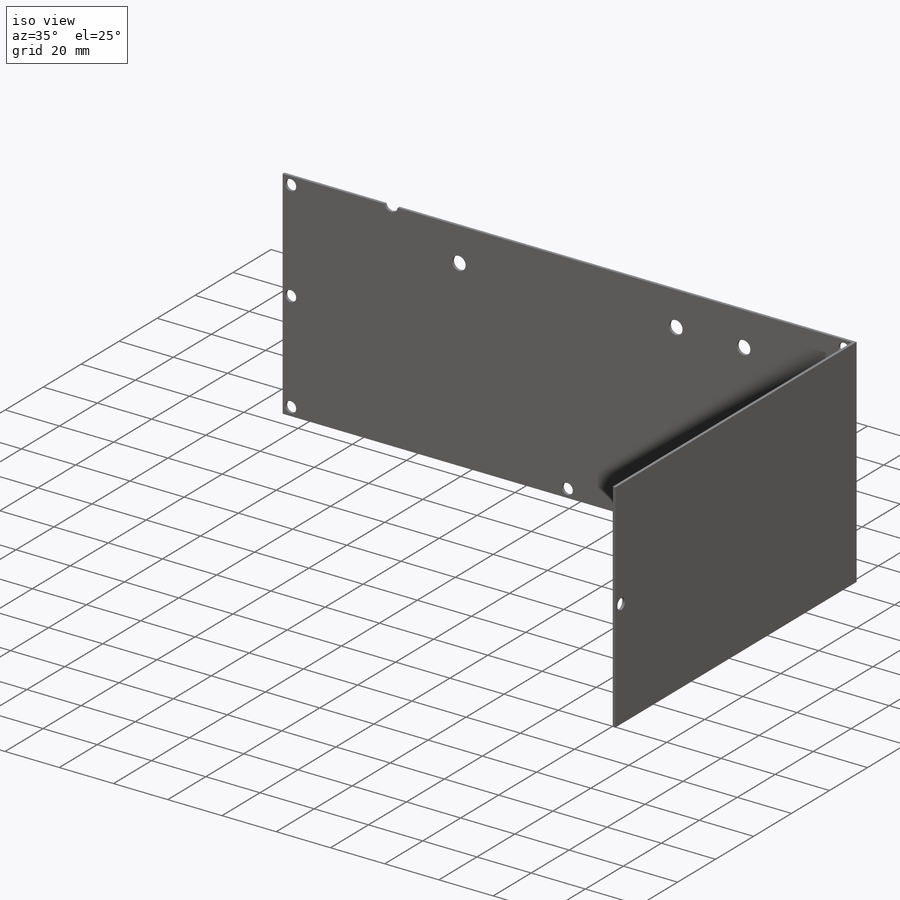
[diagram: iso view]
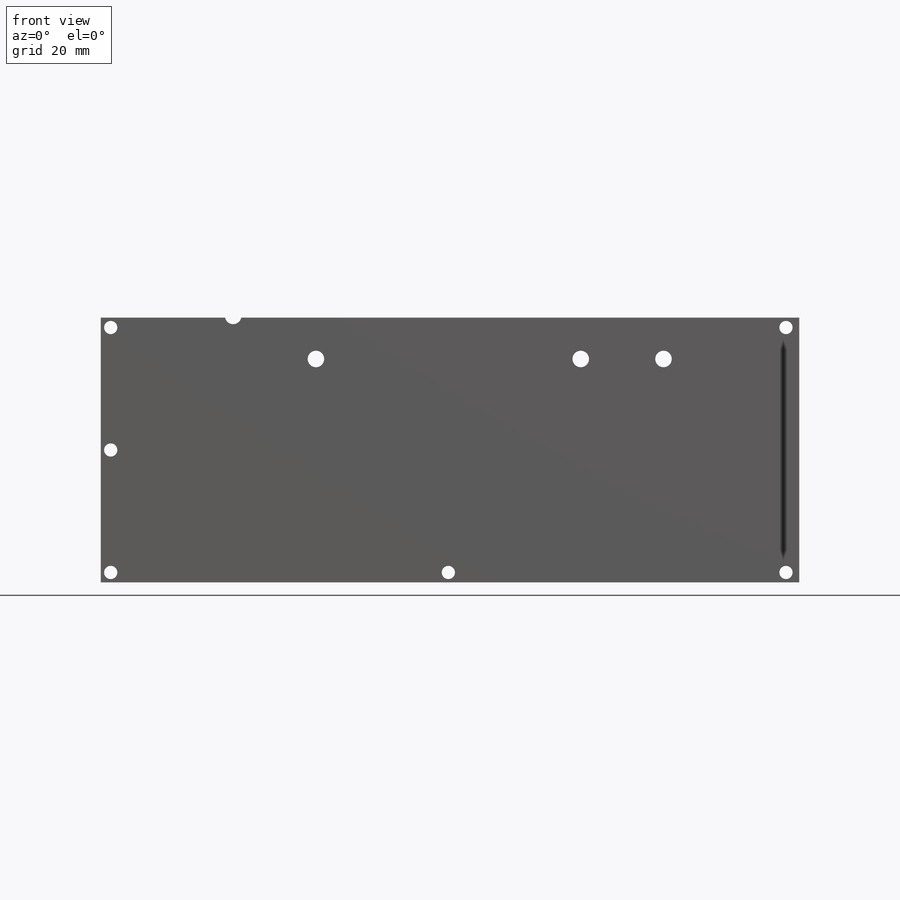
[diagram: front view]
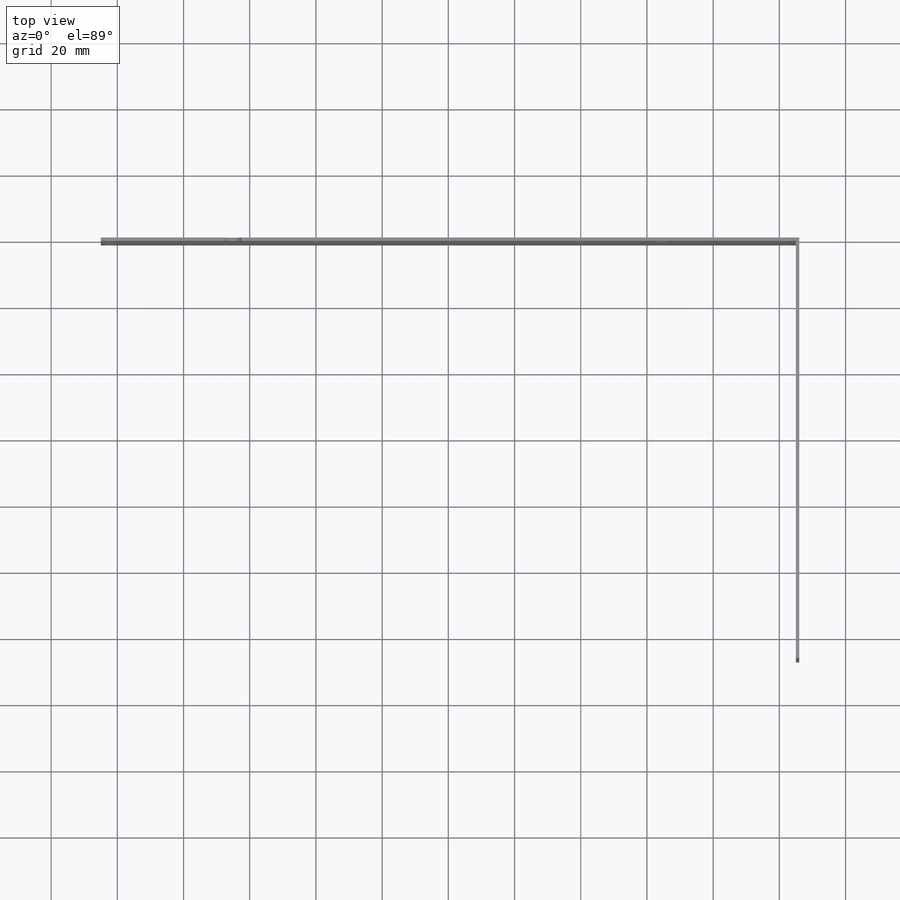
[diagram: top view]
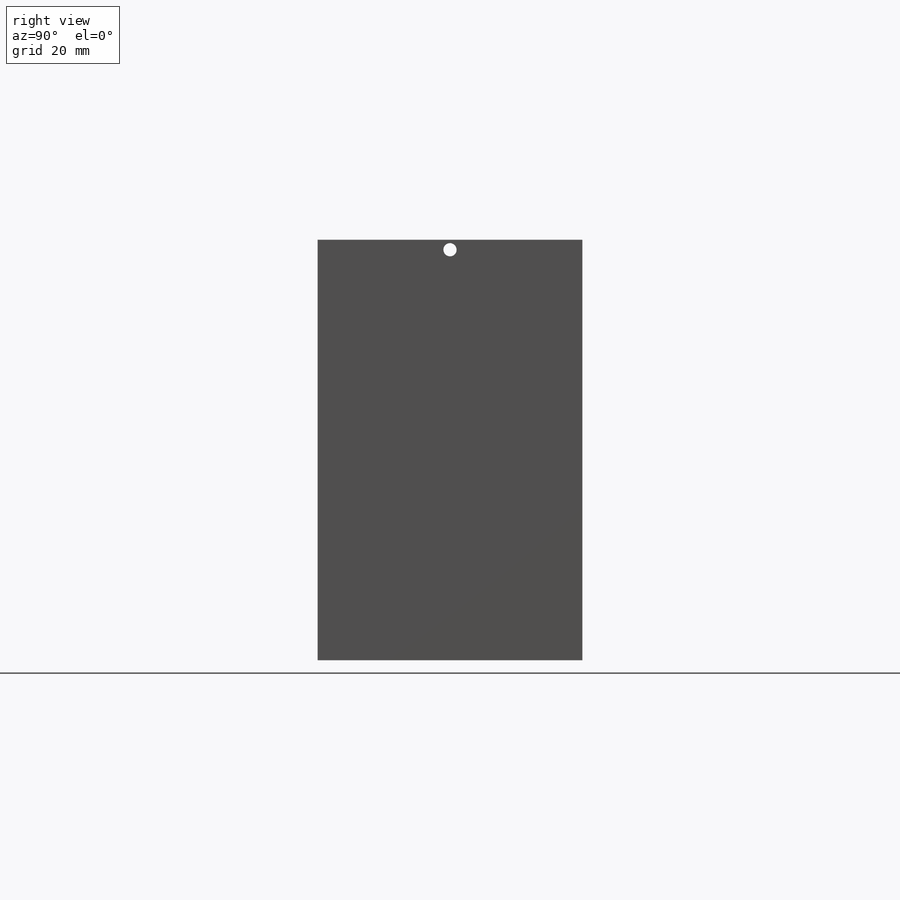
[diagram: right view]
SOLIDWORKS PART (.sldprt)
format: sldprt  version: not decoded by parser v0  size: 241,152 bytes
history: native  units: mm
features: sketch x5, plane x3, cut_extrude x3, extrude x2, material x1 (+10 scaffold rows collapsed)
feature tree (24):
  scaffold x10  (default folders/planes/origin — collapsed)
  material  "材质 <未指定>"
  plane  "前视"
  plane  "上视"
  plane  "右视"
  sketch  "草图1"  dims[D1=80.0mm D2=210.0mm]
  extrude  "凸台-拉伸1"  Depth=1mm
  sketch  "草图2"  dims[D1=80.0mm D2=1.0mm]
  extrude  "凸台-拉伸2"  Depth=126mm
  sketch  "草图3"  dims[c1.D1=~5.581983mm c1.D5=~4.61143mm c2.D1=3.0mm c2.D2=40.0mm c2.D5=3.0mm c2.D6=102.0mm c3.D6=37.0mm c3.D7=37.0mm c3.D8=3.0mm c3.D9=3.0mm c3.D10=102.0mm c3.D11=102.0mm c3.D12=3.0mm c3.D3=2.0 c3.D4=2.0]
  cut_extrude  "切除-拉伸1"  Depth=2mm
  sketch  "草图5"  dims[D1=3.0mm D2=3.0mm D3=3.0mm]
  cut_extrude  "切除-拉伸2"  Depth=2mm
  sketch  "草图6"  dims[D1=25.0mm D2=12.5mm D3=40.0mm]
  cut_extrude  "切除-拉伸3"  Depth=2mm
decode coverage: 10 of 10 modeling features carry decoded parameters
note: ~ marks probable driven/reference dimensions
note: suppression state not decoded; provenance and decode notes live in map.json
